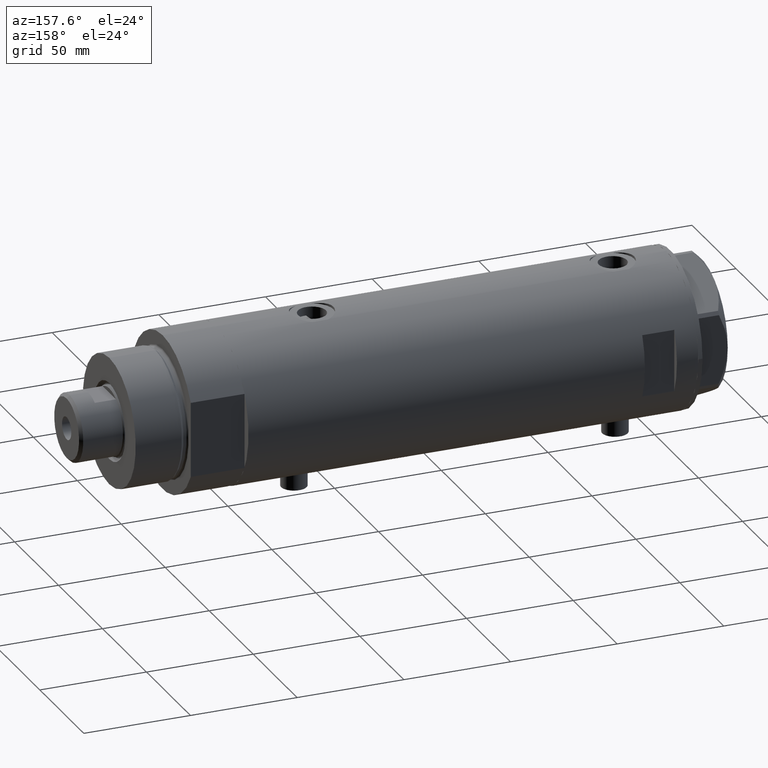
[diagram: clean part render]
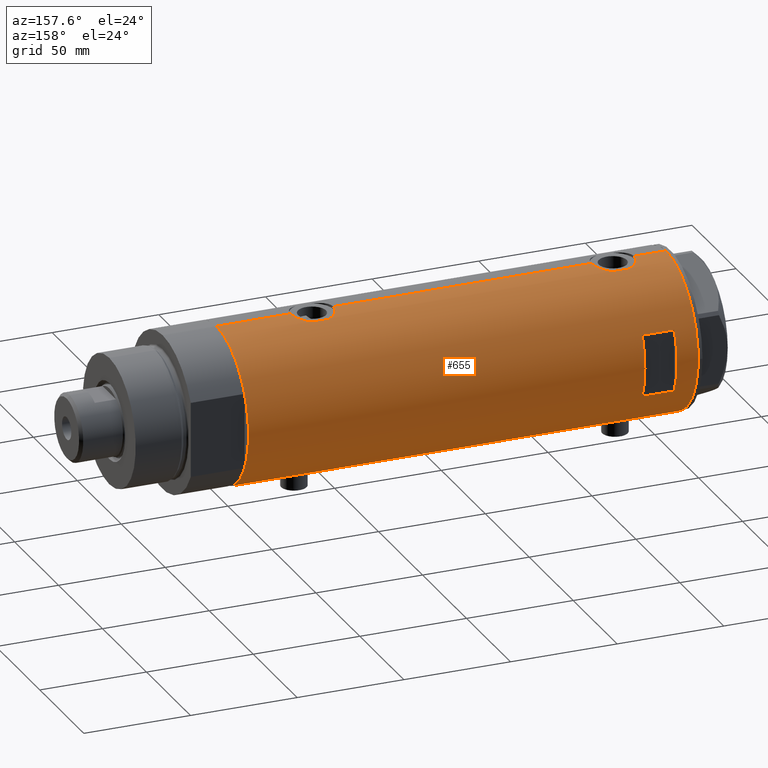
[diagram: same view with one face highlighted and labeled with its STEP entity id]
A machine part, auxiliary view. The second image highlights one B-rep face of the part: STEP entity #655.
In plain terms, the highlighted cylindrical surface (partial cylindrical patch) has radius 36.5 mm, axis along (-1, -0, 0).
Its self-contained STEP definition (entity closure, byte-faithful):
#12 = EDGE_CURVE ( 'NONE', #1223, #3325, #3095, .T. ) ;
#15 = CARTESIAN_POINT ( 'NONE',  ( -36.03936508729894683, 5.782103729777506196, 83.79870532603797528 ) ) ;
#29 = ORIENTED_EDGE ( 'NONE', *, *, #3892, .F. ) ;
#36 = CARTESIAN_POINT ( 'NONE',  ( -36.11199073531170001, 5.309184630646988090, 84.70412840766836382 ) ) ;
#38 = VECTOR ( 'NONE', #728, 1000.000000000000000 ) ;
#46 = VERTEX_POINT ( 'NONE', #1334 ) ;
#53 = CARTESIAN_POINT ( 'NONE',  ( 35.59366931936804690, 8.089554397885864390, -66.49927319087814226 ) ) ;
#54 = CARTESIAN_POINT ( 'NONE',  ( -35.99700617875953412, 6.038972911021586398, 83.02333185798322290 ) ) ;
#70 = VERTEX_POINT ( 'NONE', #3469 ) ;
#77 = CARTESIAN_POINT ( 'NONE',  ( -36.01524716445113938, 5.931039972055517140, 79.38669268135345192 ) ) ;
#84 = DIRECTION ( 'NONE',  ( 0.000000000000000000, 4.625929269271492422E-15, 1.000000000000000000 ) ) ;
#88 = CARTESIAN_POINT ( 'NONE',  ( 36.41717583764486221, 2.469534783404756073, -50.90651988824328100 ) ) ;
#101 = CARTESIAN_POINT ( 'NONE',  ( -36.09617453667821252, 5.415318599347968664, 84.52706642672910675 ) ) ;
#115 = VERTEX_POINT ( 'NONE', #3876 ) ;
#134 = CARTESIAN_POINT ( 'NONE',  ( 35.29999999999999716, 9.282241108697832033, 84.12021504754764578 ) ) ;
#139 = CARTESIAN_POINT ( 'NONE',  ( 36.50000000000000000, 4.344609657431182014E-19, -50.60000000000000853 ) ) ;
#143 = CARTESIAN_POINT ( 'NONE',  ( 35.29999999999999716, 9.282241108697832033, 76.67978495245235138 ) ) ;
#203 = DIRECTION ( 'NONE',  ( 0.000000000000000000, 0.000000000000000000, 1.000000000000000000 ) ) ;
#215 = ORIENTED_EDGE ( 'NONE', *, *, #2620, .F. ) ;
#259 = CARTESIAN_POINT ( 'NONE',  ( -36.50000000000000000, 4.469960816887837641E-15, -105.4000000000000057 ) ) ;
#267 = CARTESIAN_POINT ( 'NONE',  ( -36.44628644024910358, 2.015372769639943051, -75.03028128013583853 ) ) ;
#268 = CARTESIAN_POINT ( 'NONE',  ( 35.79715675463678792, 7.130463293899335753, 87.41555584105994114 ) ) ;
#287 = CARTESIAN_POINT ( 'NONE',  ( -36.11206433103226487, 5.308658295084045520, -72.40484648040975912 ) ) ;
#304 = CARTESIAN_POINT ( 'NONE',  ( 36.50000000000000000, 0.000000000000000000, 70.40000000000000568 ) ) ;
#315 = CARTESIAN_POINT ( 'NONE',  ( 36.50000000000000000, 0.000000000000000000, -105.4000000000000057 ) ) ;
#360 = CARTESIAN_POINT ( 'NONE',  ( -36.01679413914727235, 5.919813138266325048, -67.08500308952962143 ) ) ;
#424 = CARTESIAN_POINT ( 'NONE',  ( -36.19624103943463922, 4.708090268046847271, 85.53061221446137097 ) ) ;
#432 = CARTESIAN_POINT ( 'NONE',  ( 35.83170458557578542, 6.955065627744197343, -53.41058328087536466 ) ) ;
#441 = CARTESIAN_POINT ( 'NONE',  ( -36.26643311080165688, 4.132772529026634167, 86.10619405269881099 ) ) ;
#468 = CARTESIAN_POINT ( 'NONE',  ( -36.05296344941213960, 5.695624845616829468, 78.81845143463239367 ) ) ;
#469 = CARTESIAN_POINT ( 'NONE',  ( -36.50000000000000000, 1.407447864834978200E-15, 87.65000000000000568 ) ) ;
#470 = VERTEX_POINT ( 'NONE', #3497 ) ;
#505 = ORIENTED_EDGE ( 'NONE', *, *, #845, .F. ) ;
#531 = CARTESIAN_POINT ( 'NONE',  ( 36.13018480315371761, 5.199168368309158517, -69.15646498208050730 ) ) ;
#537 = ORIENTED_EDGE ( 'NONE', *, *, #4401, .T. ) ;
#554 = DIRECTION ( 'NONE',  ( -0.000000000000000000, -0.000000000000000000, -1.000000000000000000 ) ) ;
#559 = CARTESIAN_POINT ( 'NONE',  ( 36.36225053217121683, 3.177096004138046048, -70.08516024475980544 ) ) ;
#566 = VERTEX_POINT ( 'NONE', #1803 ) ;
#571 = CARTESIAN_POINT ( 'NONE',  ( 35.29999999999999716, 9.282241108697835585, -105.4000000000000057 ) ) ;
#573 = CARTESIAN_POINT ( 'NONE',  ( 36.49999999999999289, 0.4961820988516178477, 90.39999999999997726 ) ) ;
#588 = CARTESIAN_POINT ( 'NONE',  ( 0.000000000000000000, 0.000000000000000000, -105.4000000000000057 ) ) ;
#591 = CARTESIAN_POINT ( 'NONE',  ( 36.26917563968160607, 4.104523505324173982, 71.27784011632526529 ) ) ;
#597 = CARTESIAN_POINT ( 'NONE',  ( 35.52347503888661606, 8.410566959990463332, 85.89953967259343415 ) ) ;
#614 = CARTESIAN_POINT ( 'NONE',  ( 35.59366931936805400, 8.089554397885866166, 74.50072680912187195 ) ) ;
#622 = CARTESIAN_POINT ( 'NONE',  ( -36.36587679577596077, 3.131448301962866054, -74.51282465573619618 ) ) ;
#634 = FACE_BOUND ( 'NONE', #739, .T. ) ;
#648 = CARTESIAN_POINT ( 'NONE',  ( -35.96094343308264740, 6.249843792257632202, -68.68912889655432252 ) ) ;
#650 = EDGE_CURVE ( 'NONE', #470, #2335, #4029, .T. ) ;
#655 = ADVANCED_FACE ( 'NONE', ( #634, #3724 ), #2012, .T. ) ;
#712 = EDGE_CURVE ( 'NONE', #115, #46, #4468, .T. ) ;
#726 = CARTESIAN_POINT ( 'NONE',  ( -36.50000000000000000, 0.4137727629436734333, -62.84999999999998721 ) ) ;
#728 = DIRECTION ( 'NONE',  ( -0.000000000000000000, -0.000000000000000000, -1.000000000000000000 ) ) ;
#739 = EDGE_LOOP ( 'NONE', ( #215, #2406, #898, #2362 ) ) ;
#745 = CARTESIAN_POINT ( 'NONE',  ( -36.50000000000000000, 0.4083036190459313763, 75.14999999999996305 ) ) ;
#759 = AXIS2_PLACEMENT_3D ( 'NONE', #3487, #84, #1112 ) ;
#765 = CARTESIAN_POINT ( 'NONE',  ( -36.49297130294515057, 0.8204796224394288462, 87.60931692217734224 ) ) ;
#775 = B_SPLINE_CURVE_WITH_KNOTS ( 'NONE', 3,
 ( #304, #2320, #3708, #2402, #1379, #2683, #591, #2702, #2727, #3439, #1679, #1996, #1633, #614, #4068, #3017, #2748, #3369 ),
 .UNSPECIFIED., .F., .F.,
 ( 4, 2, 2, 2, 2, 2, 2, 2, 4 ),
 ( -8.673617379884035472E-19, 0.002973648994175663411, 0.003717061242719586420, 0.004460473491263509428, 0.005947297988351372793, 0.007434122485439235289, 0.008920946982527096919, 0.01040777147961496202, 0.01189459597670282365 ),
 .UNSPECIFIED. ) ;
#783 = CARTESIAN_POINT ( 'NONE',  ( -36.35033317675381426, 3.306376218664582645, 76.09229280583950583 ) ) ;
#823 = CARTESIAN_POINT ( 'NONE',  ( -36.11206433103227909, 5.308658295084049072, 78.09515351959024088 ) ) ;
#845 = EDGE_CURVE ( 'NONE', #2765, #3325, #1499, .T. ) ;
#898 = ORIENTED_EDGE ( 'NONE', *, *, #712, .F. ) ;
#944 = VERTEX_POINT ( 'NONE', #143 ) ;
#947 = ORIENTED_EDGE ( 'NONE', *, *, #4033, .F. ) ;
#954 = EDGE_LOOP ( 'NONE', ( #537, #1253, #4281, #4091, #505, #4375, #2059, #29, #4142, #2787, #947, #1606, #1543, #1268, #3474, #2628 ) ) ;
#957 = EDGE_CURVE ( 'NONE', #2765, #3110, #2253, .T. ) ;
#967 = CARTESIAN_POINT ( 'NONE',  ( -36.50000000000000711, 0.4083036190459274350, -75.35000000000002274 ) ) ;
#996 = AXIS2_PLACEMENT_3D ( 'NONE', #588, #3687, #3728 ) ;
#1018 = EDGE_CURVE ( 'NONE', #3223, #115, #1857, .T. ) ;
#1033 = VERTEX_POINT ( 'NONE', #2624 ) ;
#1048 = DIRECTION ( 'NONE',  ( 0.000000000000000000, 0.000000000000000000, 1.000000000000000000 ) ) ;
#1066 = CARTESIAN_POINT ( 'NONE',  ( -36.47290054070997201, 1.420408912806972124, -63.01013018339985194 ) ) ;
#1084 = CARTESIAN_POINT ( 'NONE',  ( -36.30181775639988473, 3.813582387016785535, 76.43163942425562141 ) ) ;
#1087 = CARTESIAN_POINT ( 'NONE',  ( -36.39638105034455151, 2.774378062517169674, -63.48456667300896328 ) ) ;
#1103 = CARTESIAN_POINT ( 'NONE',  ( -36.46462099658055678, 1.618684470865506375, 87.44024397024844575 ) ) ;
#1110 = CARTESIAN_POINT ( 'NONE',  ( -36.05296344941216802, 5.695624845616830356, -71.68154856536759212 ) ) ;
#1112 = DIRECTION ( 'NONE',  ( 0.000000000000000000, 1.000000000000000000, -4.562560375171875891E-15 ) ) ;
#1124 = CARTESIAN_POINT ( 'NONE',  ( -36.06675137892953131, 5.607935153446980792, 84.16681826008758094 ) ) ;
#1147 = CARTESIAN_POINT ( 'NONE',  ( 35.93456089024233790, 6.410413305453382726, -68.29085963204144605 ) ) ;
#1153 = VERTEX_POINT ( 'NONE', #1171 ) ;
#1171 = CARTESIAN_POINT ( 'NONE',  ( -14.49137674618942562, 33.50000000000000000, 80.40000000000003411 ) ) ;
#1223 = VERTEX_POINT ( 'NONE', #4287 ) ;
#1238 = CARTESIAN_POINT ( 'NONE',  ( 36.50000000000000000, 1.005842003469122004, -70.59999999999999432 ) ) ;
#1239 = CARTESIAN_POINT ( 'NONE',  ( 35.72794581931695745, 7.469526493268201506, -53.94660203271736520 ) ) ;
#1253 = ORIENTED_EDGE ( 'NONE', *, *, #1609, .T. ) ;
#1258 = CARTESIAN_POINT ( 'NONE',  ( 0.000000000000000000, 0.000000000000000000, 95.40000000000001990 ) ) ;
#1267 = EDGE_CURVE ( 'NONE', #1631, #944, #3670, .T. ) ;
#1268 = ORIENTED_EDGE ( 'NONE', *, *, #2433, .T. ) ;
#1303 = CARTESIAN_POINT ( 'NONE',  ( 35.29999999999999716, 9.282241108697835585, -105.4000000000000057 ) ) ;
#1334 = CARTESIAN_POINT ( 'NONE',  ( 14.49137674618942384, 33.50000000000000000, 80.40000000000003411 ) ) ;
#1342 = CARTESIAN_POINT ( 'NONE',  ( 35.83170458557578542, 6.955065627744196455, 87.58941671912465665 ) ) ;
#1379 = CARTESIAN_POINT ( 'NONE',  ( 36.34070350304396158, 3.414301401755541310, 70.99763782624093267 ) ) ;
#1383 = CIRCLE ( 'NONE', #1865, 36.50000000000000000 ) ;
#1385 = CARTESIAN_POINT ( 'NONE',  ( -36.40902375114221456, 2.582415566883933256, -74.79521691469689415 ) ) ;
#1395 = CARTESIAN_POINT ( 'NONE',  ( 36.50000000000000000, 0.000000000000000000, -105.4000000000000057 ) ) ;
#1396 = CARTESIAN_POINT ( 'NONE',  ( -36.16126303108063667, 4.966520032693295228, -65.28358772254718190 ) ) ;
#1424 = CIRCLE ( 'NONE', #996, 36.50000000000000000 ) ;
#1438 = B_SPLINE_CURVE_WITH_KNOTS ( 'NONE', 3,
 ( #3321, #1238, #2602, #559, #3971, #3632, #1951, #2046, #531, #2961, #1147, #3124, #2813, #53, #2616, #3979, #2272, #4102 ),
 .UNSPECIFIED., .F., .F.,
 ( 4, 2, 2, 2, 2, 2, 2, 2, 4 ),
 ( -1.084202172485504434E-18, 0.002973648994175745811, 0.003717061242719678360, 0.004460473491263610910, 0.005947297988351454325, 0.007434122485439297739, 0.008920946982527140287, 0.01040777147961498283, 0.01189459597670282365 ),
 .UNSPECIFIED. ) ;
#1482 = CARTESIAN_POINT ( 'NONE',  ( -36.06690560274405044, 5.606949625760678124, 78.63114076041068756 ) ) ;
#1495 = CARTESIAN_POINT ( 'NONE',  ( 36.44688397185920792, 1.983417953489134300, -50.79550042351748829 ) ) ;
#1499 = B_SPLINE_CURVE_WITH_KNOTS ( 'NONE', 3,
 ( #4189, #3909, #765, #1792, #1103, #2199, #2535, #3829, #1863, #4230, #441, #424, #2471, #36, #101, #1124, #15, #3480, #54, #3546, #1813, #2816, #2491, #2857, #3571, #77, #468, #1482, #4173, #823, #2796, #1835, #2516, #1084, #783, #2158, #3209, #3503, #2452, #3867, #3844, #745, #3889 ),
 .UNSPECIFIED., .F., .F.,
 ( 4, 2, 2, 2, 2, 2, 2, 2, 1, 2, 2, 2, 2, 2, 2, 2, 2, 2, 2, 2, 2, 4 ),
 ( 1.367394070233553059E-18, 0.001223527801214184920, 0.001835291701821280957, 0.002447055602428376345, 0.003670583403642568420, 0.004894111204856760496, 0.006117639006070953005, 0.006729402906678031912, 0.007341166807285110819, 0.007952930707892187992, 0.008564694608499267767, 0.009788222409713425581, 0.01101175021092758340, 0.01223527801214174121, 0.01284704191274879843, 0.01345880581335585913, 0.01468233361456997531, 0.01590586141578409149, 0.01651762531639115392, 0.01712938921699821287, 0.01835291701821231691, 0.01957644481942642095 ),
 .UNSPECIFIED. ) ;
#1504 = VECTOR ( 'NONE', #4086, 1000.000000000000000 ) ;
#1540 = DIRECTION ( 'NONE',  ( 0.000000000000000000, 0.000000000000000000, 1.000000000000000000 ) ) ;
#1543 = ORIENTED_EDGE ( 'NONE', *, *, #650, .F. ) ;
#1570 = AXIS2_PLACEMENT_3D ( 'NONE', #3128, #1048, #1735 ) ;
#1594 = LINE ( 'NONE', #1686, #2744 ) ;
#1606 = ORIENTED_EDGE ( 'NONE', *, *, #3530, .F. ) ;
#1609 = EDGE_CURVE ( 'NONE', #3938, #566, #1594, .T. ) ;
#1611 = CARTESIAN_POINT ( 'NONE',  ( -14.49137674618942739, 33.50000000000000000, 95.40000000000001990 ) ) ;
#1630 = DIRECTION ( 'NONE',  ( 1.000000000000000000, 0.000000000000000000, 0.000000000000000000 ) ) ;
#1631 = VERTEX_POINT ( 'NONE', #134 ) ;
#1633 = CARTESIAN_POINT ( 'NONE',  ( 35.72860827204724643, 7.471059959301278752, 73.73474849525591424 ) ) ;
#1641 = VECTOR ( 'NONE', #4471, 1000.000000000000000 ) ;
#1653 = CARTESIAN_POINT ( 'NONE',  ( 36.50000000000000000, 0.000000000000000000, 105.4000000000000057 ) ) ;
#1658 = CARTESIAN_POINT ( 'NONE',  ( 35.39804469700249001, 8.909380959553013568, 85.05053164482841055 ) ) ;
#1663 = CARTESIAN_POINT ( 'NONE',  ( -36.50000000000000000, 4.469960493350315609E-15, -75.35000000000000853 ) ) ;
#1679 = CARTESIAN_POINT ( 'NONE',  ( 35.93456089024233790, 6.410413305453380950, 72.70914036795855395 ) ) ;
#1682 = CARTESIAN_POINT ( 'NONE',  ( 36.41717583764487642, 2.469534783404760514, 90.09348011175671900 ) ) ;
#1683 = CARTESIAN_POINT ( 'NONE',  ( -36.01524716445114649, 5.931039972055518916, -71.11330731864657650 ) ) ;
#1686 = CARTESIAN_POINT ( 'NONE',  ( -36.50000000000000000, 4.469960816887837641E-15, -105.4000000000000057 ) ) ;
#1707 = CARTESIAN_POINT ( 'NONE',  ( -36.26695135241003953, 4.128455078791312793, -73.81037591644739848 ) ) ;
#1735 = DIRECTION ( 'NONE',  ( 1.000000000000000000, 0.000000000000000000, 0.000000000000000000 ) ) ;
#1742 = EDGE_CURVE ( 'NONE', #4403, #3110, #1383, .T. ) ;
#1751 = CARTESIAN_POINT ( 'NONE',  ( -35.99700617875953412, 6.038972911021587286, -67.47666814201679131 ) ) ;
#1758 = VECTOR ( 'NONE', #2330, 1000.000000000000000 ) ;
#1761 = CARTESIAN_POINT ( 'NONE',  ( 36.50000000000000000, 4.344614706140975428E-19, 90.39999999999999147 ) ) ;
#1792 = CARTESIAN_POINT ( 'NONE',  ( -36.47290054070997911, 1.420408912806973678, 87.48986981660016227 ) ) ;
#1801 = CARTESIAN_POINT ( 'NONE',  ( -35.96088929326157313, 6.250155299092686967, -69.50610494763246550 ) ) ;
#1803 = CARTESIAN_POINT ( 'NONE',  ( -36.50000000000000000, 4.469960493350315609E-15, -75.35000000000000853 ) ) ;
#1813 = CARTESIAN_POINT ( 'NONE',  ( -35.96793274302675059, 6.210029014836887740, 82.21694237679317041 ) ) ;
#1822 = CARTESIAN_POINT ( 'NONE',  ( 36.40008489419981430, 2.709263960908028679, -50.97081895403610474 ) ) ;
#1835 = CARTESIAN_POINT ( 'NONE',  ( -36.19597718496777361, 4.710322426433901200, 77.27148389237981974 ) ) ;
#1848 = CARTESIAN_POINT ( 'NONE',  ( 36.18937351723702989, 4.773052864917637805, -51.79864006881157934 ) ) ;
#1857 = CIRCLE ( 'NONE', #1940, 36.50000000000000000 ) ;
#1863 = CARTESIAN_POINT ( 'NONE',  ( -36.36688032967141027, 3.133094607697489931, 86.82336432637509915 ) ) ;
#1865 = AXIS2_PLACEMENT_3D ( 'NONE', #2986, #203, #1630 ) ;
#1902 = CARTESIAN_POINT ( 'NONE',  ( 35.79715675463678792, 7.130463293899339305, -53.58444415894006596 ) ) ;
#1940 = AXIS2_PLACEMENT_3D ( 'NONE', #1258, #554, #4331 ) ;
#1951 = CARTESIAN_POINT ( 'NONE',  ( 36.26917563968161318, 4.104523505324172206, -69.72215988367474893 ) ) ;
#1963 = CARTESIAN_POINT ( 'NONE',  ( 36.50000000000000000, 4.344614706140975428E-19, 90.39999999999999147 ) ) ;
#1996 = CARTESIAN_POINT ( 'NONE',  ( 35.79766710091575987, 7.135341284989890731, 73.37649479439095046 ) ) ;
#2012 = CYLINDRICAL_SURFACE ( 'NONE', #1570, 36.50000000000000000 ) ;
#2023 = CARTESIAN_POINT ( 'NONE',  ( -35.98846897517729815, 6.089479646546500646, -67.67765108453481560 ) ) ;
#2042 = CARTESIAN_POINT ( 'NONE',  ( -36.06690560274406465, 5.606949625760679901, -71.86885923958934086 ) ) ;
#2046 = CARTESIAN_POINT ( 'NONE',  ( 36.18948008481303447, 4.772042575486197258, -69.40177631243156497 ) ) ;
#2059 = ORIENTED_EDGE ( 'NONE', *, *, #1742, .F. ) ;
#2094 = CARTESIAN_POINT ( 'NONE',  ( -36.09617453667821252, 5.415318599347968664, -65.97293357327090746 ) ) ;
#2108 = CARTESIAN_POINT ( 'NONE',  ( -36.43371204571226230, 2.206934156026287397, -63.24902718329002482 ) ) ;
#2139 = CARTESIAN_POINT ( 'NONE',  ( -36.16083474549354548, 4.969527450313385053, -72.91205319122752826 ) ) ;
#2142 = CARTESIAN_POINT ( 'NONE',  ( 36.00145998247696610, 6.026272765084655703, -52.60449611787613122 ) ) ;
#2158 = CARTESIAN_POINT ( 'NONE',  ( -36.36587679577596077, 3.131448301962866054, 75.98717534426381803 ) ) ;
#2161 = EDGE_CURVE ( 'NONE', #1223, #566, #4278, .T. ) ;
#2199 = CARTESIAN_POINT ( 'NONE',  ( -36.44504802628534890, 2.011764947064737186, 87.32093644908518115 ) ) ;
#2225 = CARTESIAN_POINT ( 'NONE',  ( 36.50000000000000000, 0.000000000000000000, -105.4000000000000057 ) ) ;
#2242 = CARTESIAN_POINT ( 'NONE',  ( 35.52347503888660896, 8.410566959990461555, -55.10046032740658006 ) ) ;
#2253 = LINE ( 'NONE', #3984, #3220 ) ;
#2272 = CARTESIAN_POINT ( 'NONE',  ( 35.34894515018992678, 9.096104616284845790, -64.78464083466536749 ) ) ;
#2320 = CARTESIAN_POINT ( 'NONE',  ( 36.49999999999999289, 1.005842003469121781, 70.40000000000001990 ) ) ;
#2330 = DIRECTION ( 'NONE',  ( 0.000000000000000000, 0.000000000000000000, 1.000000000000000000 ) ) ;
#2335 = VERTEX_POINT ( 'NONE', #139 ) ;
#2344 = CARTESIAN_POINT ( 'NONE',  ( 36.18937351723702989, 4.773052864917641358, 89.20135993118843487 ) ) ;
#2347 = B_SPLINE_CURVE_WITH_KNOTS ( 'NONE', 3,
 ( #3782, #1658, #597, #4391, #4054, #268, #1342, #2368, #3741, #3283, #2344, #3020, #3331, #2664, #1682, #2971, #3672, #4388, #573, #1963 ),
 .UNSPECIFIED., .F., .F.,
 ( 4, 2, 2, 2, 2, 2, 2, 2, 2, 4 ),
 ( 1.551583845779545699E-17, 0.002977391289382861662, 0.003721739111728563851, 0.004466086934074266906, 0.005954782578765698171, 0.007443478223457130304, 0.008932173868148563303, 0.009676521690494287176, 0.01042086951284001105, 0.01190956515753145012 ),
 .UNSPECIFIED. ) ;
#2362 = ORIENTED_EDGE ( 'NONE', *, *, #1018, .F. ) ;
#2368 = CARTESIAN_POINT ( 'NONE',  ( 35.93435287561198521, 6.411571491280765756, 88.08988644922843037 ) ) ;
#2384 = VECTOR ( 'NONE', #3408, 1000.000000000000000 ) ;
#2402 = CARTESIAN_POINT ( 'NONE',  ( 36.36225053217120262, 3.177096004138046048, 70.91483975524022298 ) ) ;
#2404 = VERTEX_POINT ( 'NONE', #2225 ) ;
#2406 = ORIENTED_EDGE ( 'NONE', *, *, #3349, .F. ) ;
#2433 = EDGE_CURVE ( 'NONE', #470, #70, #3386, .T. ) ;
#2437 = CARTESIAN_POINT ( 'NONE',  ( -36.26643311080166399, 4.132772529026634167, -64.39380594730117480 ) ) ;
#2452 = CARTESIAN_POINT ( 'NONE',  ( -36.44628644024910358, 2.015372769639943495, 75.46971871986416147 ) ) ;
#2453 = CARTESIAN_POINT ( 'NONE',  ( -36.36688032967140316, 3.133094607697481493, -63.67663567362490085 ) ) ;
#2471 = CARTESIAN_POINT ( 'NONE',  ( -36.16126303108063667, 4.966520032693296116, 85.21641227745284652 ) ) ;
#2476 = CARTESIAN_POINT ( 'NONE',  ( -36.39522946636253664, 2.769519034821244396, -74.70663923731272860 ) ) ;
#2480 = VERTEX_POINT ( 'NONE', #1761 ) ;
#2491 = CARTESIAN_POINT ( 'NONE',  ( -35.96088929326157313, 6.250155299092687855, 80.99389505236753450 ) ) ;
#2492 = CARTESIAN_POINT ( 'NONE',  ( -36.50000000000000000, 4.469960493350315609E-15, 75.14999999999999147 ) ) ;
#2493 = CARTESIAN_POINT ( 'NONE',  ( -36.50000000000000000, -5.849986204104554638E-16, -62.85000000000000142 ) ) ;
#2516 = CARTESIAN_POINT ( 'NONE',  ( -36.26695135241003953, 4.128455078791301247, 76.68962408355262994 ) ) ;
#2535 = CARTESIAN_POINT ( 'NONE',  ( -36.43371204571226940, 2.206934156026287397, 87.25097281670997518 ) ) ;
#2549 = CARTESIAN_POINT ( 'NONE',  ( 36.50000000000000000, 0.000000000000000000, -105.4000000000000057 ) ) ;
#2593 = DIRECTION ( 'NONE',  ( 0.000000000000000000, 0.000000000000000000, 1.000000000000000000 ) ) ;
#2597 = DIRECTION ( 'NONE',  ( 0.000000000000000000, 0.000000000000000000, 1.000000000000000000 ) ) ;
#2602 = CARTESIAN_POINT ( 'NONE',  ( 36.45853166336080164, 1.985123042546143024, -70.45162670417735740 ) ) ;
#2603 = CARTESIAN_POINT ( 'NONE',  ( 35.93435287561197811, 6.411571491280765756, -52.91011355077158385 ) ) ;
#2616 = CARTESIAN_POINT ( 'NONE',  ( 35.52737867031126484, 8.373910777960910323, -66.08860356717067930 ) ) ;
#2620 = EDGE_CURVE ( 'NONE', #1153, #3223, #3627, .T. ) ;
#2624 = CARTESIAN_POINT ( 'NONE',  ( 36.50000000000000000, 0.000000000000000000, 70.40000000000000568 ) ) ;
#2628 = ORIENTED_EDGE ( 'NONE', *, *, #2678, .F. ) ;
#2629 = CARTESIAN_POINT ( 'NONE',  ( 36.50000000000000000, 0.000000000000000000, -70.59999999999999432 ) ) ;
#2664 = CARTESIAN_POINT ( 'NONE',  ( 36.40008489419980720, 2.709263960908030899, 90.02918104596392368 ) ) ;
#2678 = EDGE_CURVE ( 'NONE', #2404, #4286, #4469, .T. ) ;
#2683 = CARTESIAN_POINT ( 'NONE',  ( 36.29420020483469500, 3.877527130731365901, 71.17901025599704212 ) ) ;
#2702 = CARTESIAN_POINT ( 'NONE',  ( 36.18948008481302026, 4.772042575486197258, 71.59822368756843503 ) ) ;
#2708 = CARTESIAN_POINT ( 'NONE',  ( -36.09643313249888763, 5.413601294342280212, -72.23007773391850606 ) ) ;
#2727 = CARTESIAN_POINT ( 'NONE',  ( 36.13018480315371761, 5.199168368309160293, 71.84353501791950691 ) ) ;
#2744 = VECTOR ( 'NONE', #3675, 1000.000000000000000 ) ;
#2748 = CARTESIAN_POINT ( 'NONE',  ( 35.34894515018993388, 9.096104616284849342, 76.21535916533458987 ) ) ;
#2755 = CARTESIAN_POINT ( 'NONE',  ( -36.46598788992681506, 1.625721481788708900, -75.14872046713838927 ) ) ;
#2765 = VERTEX_POINT ( 'NONE', #469 ) ;
#2787 = ORIENTED_EDGE ( 'NONE', *, *, #1267, .T. ) ;
#2796 = CARTESIAN_POINT ( 'NONE',  ( -36.16083474549354548, 4.969527450313384165, 77.58794680877252858 ) ) ;
#2813 = CARTESIAN_POINT ( 'NONE',  ( 35.72860827204724643, 7.471059959301278752, -67.26525150474407155 ) ) ;
#2816 = CARTESIAN_POINT ( 'NONE',  ( -35.96094343308266161, 6.249843792257633979, 81.81087110344569169 ) ) ;
#2857 = CARTESIAN_POINT ( 'NONE',  ( -35.96805604460922012, 6.209309709790233889, 80.57887241731827999 ) ) ;
#2869 = CARTESIAN_POINT ( 'NONE',  ( 36.45954139109320380, 1.735915671103592794, -50.74863218852989633 ) ) ;
#2915 = CARTESIAN_POINT ( 'NONE',  ( -36.50000000000000000, 4.469960816887837641E-15, -105.4000000000000057 ) ) ;
#2938 = CARTESIAN_POINT ( 'NONE',  ( 35.39804469700249712, 8.909380959553015344, -55.94946835517159656 ) ) ;
#2961 = CARTESIAN_POINT ( 'NONE',  ( 36.00287854058831272, 6.017835360302997039, -68.60188117181725431 ) ) ;
#2971 = CARTESIAN_POINT ( 'NONE',  ( 36.44688397185922923, 1.983417953489138297, 90.20449957648254724 ) ) ;
#2986 = CARTESIAN_POINT ( 'NONE',  ( 0.000000000000000000, 0.000000000000000000, 105.4000000000000057 ) ) ;
#3017 = CARTESIAN_POINT ( 'NONE',  ( 35.40502660484482078, 8.876998817796904362, 75.76901275928764790 ) ) ;
#3020 = CARTESIAN_POINT ( 'NONE',  ( 36.29611582693039651, 3.878758190381167648, 89.63044989099550719 ) ) ;
#3049 = CARTESIAN_POINT ( 'NONE',  ( 14.49137674618942562, 33.50000000000000000, -105.4000000000000057 ) ) ;
#3091 = CARTESIAN_POINT ( 'NONE',  ( 36.50000000000000000, 4.344609657431182014E-19, -50.60000000000000853 ) ) ;
#3093 = CARTESIAN_POINT ( 'NONE',  ( -36.19624103943463211, 4.708090268046848159, -64.96938778553862903 ) ) ;
#3095 = LINE ( 'NONE', #259, #1641 ) ;
#3104 = CARTESIAN_POINT ( 'NONE',  ( -36.35033317675379294, 3.306376218664579980, -74.40770719416053680 ) ) ;
#3110 = VERTEX_POINT ( 'NONE', #3422 ) ;
#3124 = CARTESIAN_POINT ( 'NONE',  ( 35.79766710091575987, 7.135341284989892507, -67.62350520560906375 ) ) ;
#3127 = EDGE_CURVE ( 'NONE', #4286, #70, #1438, .T. ) ;
#3128 = CARTESIAN_POINT ( 'NONE',  ( 0.000000000000000000, 0.000000000000000000, -105.4000000000000057 ) ) ;
#3176 = CARTESIAN_POINT ( 'NONE',  ( 36.29611582693039651, 3.878758190381166759, -51.36955010900450702 ) ) ;
#3197 = CARTESIAN_POINT ( 'NONE',  ( 36.12877841835538106, 5.208882251161921495, -52.04946835209709377 ) ) ;
#3209 = CARTESIAN_POINT ( 'NONE',  ( -36.39522946636253664, 2.769519034821243508, 75.79336076268727140 ) ) ;
#3220 = VECTOR ( 'NONE', #2593, 1000.000000000000000 ) ;
#3223 = VERTEX_POINT ( 'NONE', #1611 ) ;
#3231 = VECTOR ( 'NONE', #2597, 1000.000000000000000 ) ;
#3245 = CARTESIAN_POINT ( 'NONE',  ( 35.29999999999999716, 9.282241108697832033, -56.87978495245235422 ) ) ;
#3283 = CARTESIAN_POINT ( 'NONE',  ( 36.12877841835538817, 5.208882251161925936, 88.95053164790290623 ) ) ;
#3305 = LINE ( 'NONE', #2549, #4155 ) ;
#3321 = CARTESIAN_POINT ( 'NONE',  ( 36.50000000000000000, 0.000000000000000000, -70.59999999999999432 ) ) ;
#3325 = VERTEX_POINT ( 'NONE', #2492 ) ;
#3331 = CARTESIAN_POINT ( 'NONE',  ( 36.34264078466111414, 3.418717136061404371, 89.81049034040754009 ) ) ;
#3349 = EDGE_CURVE ( 'NONE', #46, #1153, #3788, .T. ) ;
#3369 = CARTESIAN_POINT ( 'NONE',  ( 35.29999999999999716, 9.282241108697832033, 76.67978495245235138 ) ) ;
#3386 = LINE ( 'NONE', #1303, #2384 ) ;
#3389 = DIRECTION ( 'NONE',  ( 0.000000000000000000, 0.000000000000000000, 1.000000000000000000 ) ) ;
#3408 = DIRECTION ( 'NONE',  ( -0.000000000000000000, -0.000000000000000000, -1.000000000000000000 ) ) ;
#3409 = CARTESIAN_POINT ( 'NONE',  ( 36.48988646280793802, 0.9921857666168130141, -50.63671884865574668 ) ) ;
#3421 = VECTOR ( 'NONE', #3389, 1000.000000000000000 ) ;
#3422 = CARTESIAN_POINT ( 'NONE',  ( -36.50000000000000000, 4.469960816887837641E-15, 105.4000000000000057 ) ) ;
#3425 = LINE ( 'NONE', #315, #1758 ) ;
#3439 = CARTESIAN_POINT ( 'NONE',  ( 36.00287854058830561, 6.017835360302999703, 72.39811882818277411 ) ) ;
#3445 = CARTESIAN_POINT ( 'NONE',  ( -35.96805604460922012, 6.209309709790233889, -69.92112758268173422 ) ) ;
#3467 = CARTESIAN_POINT ( 'NONE',  ( -36.06675137892952421, 5.607935153446979903, -66.33318173991243327 ) ) ;
#3469 = CARTESIAN_POINT ( 'NONE',  ( 35.29999999999999716, 9.282241108697832033, -64.32021504754764862 ) ) ;
#3474 = ORIENTED_EDGE ( 'NONE', *, *, #3127, .F. ) ;
#3480 = CARTESIAN_POINT ( 'NONE',  ( -36.01679413914728656, 5.919813138266330377, 83.41499691047036436 ) ) ;
#3481 = CARTESIAN_POINT ( 'NONE',  ( -36.30200038006935870, 3.811959488093740411, -64.13027895163995140 ) ) ;
#3487 = CARTESIAN_POINT ( 'NONE',  ( 0.000000000000000000, 0.000000000000000000, 80.40000000000017621 ) ) ;
#3497 = CARTESIAN_POINT ( 'NONE',  ( 35.29999999999999716, 9.282241108697832033, -56.87978495245235422 ) ) ;
#3503 = CARTESIAN_POINT ( 'NONE',  ( -36.40902375114221456, 2.582415566883933256, 75.70478308530312006 ) ) ;
#3511 = CARTESIAN_POINT ( 'NONE',  ( -35.96793274302674348, 6.210029014836887740, -68.28305762320682959 ) ) ;
#3530 = EDGE_CURVE ( 'NONE', #2335, #1033, #3425, .T. ) ;
#3546 = CARTESIAN_POINT ( 'NONE',  ( -35.98846897517731236, 6.089479646546502423, 82.82234891546522704 ) ) ;
#3555 = CARTESIAN_POINT ( 'NONE',  ( 35.69321149401849880, 7.633476302278300096, -54.13536927833557399 ) ) ;
#3571 = CARTESIAN_POINT ( 'NONE',  ( -35.99530513653993324, 6.049346314076207598, 79.77667416964166591 ) ) ;
#3577 = CARTESIAN_POINT ( 'NONE',  ( -14.49137674618942562, 33.50000000000000000, -105.4000000000000057 ) ) ;
#3627 = LINE ( 'NONE', #3577, #3231 ) ;
#3632 = CARTESIAN_POINT ( 'NONE',  ( 36.29420020483473053, 3.877527130731367233, -69.82098974400294367 ) ) ;
#3670 = LINE ( 'NONE', #571, #38 ) ;
#3672 = CARTESIAN_POINT ( 'NONE',  ( 36.45954139109321090, 1.735915671103594349, 90.25136781147007525 ) ) ;
#3675 = DIRECTION ( 'NONE',  ( 0.000000000000000000, 0.000000000000000000, 1.000000000000000000 ) ) ;
#3687 = DIRECTION ( 'NONE',  ( 0.000000000000000000, 0.000000000000000000, 1.000000000000000000 ) ) ;
#3708 = CARTESIAN_POINT ( 'NONE',  ( 36.45853166336080164, 1.985123042546143024, 70.54837329582262839 ) ) ;
#3724 = FACE_OUTER_BOUND ( 'NONE', #954, .T. ) ;
#3728 = DIRECTION ( 'NONE',  ( 1.000000000000000000, 0.000000000000000000, 0.000000000000000000 ) ) ;
#3741 = CARTESIAN_POINT ( 'NONE',  ( 36.00145998247696610, 6.026272765084661032, 88.39550388212386167 ) ) ;
#3763 = CARTESIAN_POINT ( 'NONE',  ( -35.99530513653992614, 6.049346314076206710, -70.72332583035836251 ) ) ;
#3764 = EDGE_CURVE ( 'NONE', #1631, #2480, #2347, .T. ) ;
#3782 = CARTESIAN_POINT ( 'NONE',  ( 35.29999999999999716, 9.282241108697832033, 84.12021504754764578 ) ) ;
#3788 = CIRCLE ( 'NONE', #759, 36.50000000000000000 ) ;
#3814 = CARTESIAN_POINT ( 'NONE',  ( -36.11199073531172132, 5.309184630646989866, -65.79587159233167881 ) ) ;
#3829 = CARTESIAN_POINT ( 'NONE',  ( -36.39638105034455862, 2.774378062517170562, 87.01543332699102962 ) ) ;
#3844 = CARTESIAN_POINT ( 'NONE',  ( -36.49292802938586533, 0.8230716655928910219, 75.19093061246483956 ) ) ;
#3847 = CARTESIAN_POINT ( 'NONE',  ( -36.44504802628534890, 2.011764947064735409, -63.17906355091480464 ) ) ;
#3867 = CARTESIAN_POINT ( 'NONE',  ( -36.46598788992681506, 1.625721481788709344, 75.35127953286161073 ) ) ;
#3876 = CARTESIAN_POINT ( 'NONE',  ( 14.49137674618942739, 33.50000000000000000, 95.40000000000001990 ) ) ;
#3889 = CARTESIAN_POINT ( 'NONE',  ( -36.50000000000000000, 4.469960493350315609E-15, 75.14999999999999147 ) ) ;
#3892 = EDGE_CURVE ( 'NONE', #2480, #4403, #3305, .T. ) ;
#3909 = CARTESIAN_POINT ( 'NONE',  ( -36.49999999999999289, 0.4137727629436736554, 87.65000000000000568 ) ) ;
#3938 = VERTEX_POINT ( 'NONE', #2915 ) ;
#3971 = CARTESIAN_POINT ( 'NONE',  ( 36.34070350304396868, 3.414301401755541754, -70.00236217375906733 ) ) ;
#3979 = CARTESIAN_POINT ( 'NONE',  ( 35.40502660484482789, 8.876998817796907915, -65.23098724071236632 ) ) ;
#3984 = CARTESIAN_POINT ( 'NONE',  ( -36.50000000000000000, 4.469960816887837641E-15, -105.4000000000000057 ) ) ;
#4029 = B_SPLINE_CURVE_WITH_KNOTS ( 'NONE', 3,
 ( #3245, #2938, #2242, #3555, #1239, #1902, #432, #2603, #2142, #3197, #1848, #3176, #4216, #1822, #88, #1495, #2869, #3409, #4415, #3091 ),
 .UNSPECIFIED., .F., .F.,
 ( 4, 2, 2, 2, 2, 2, 2, 2, 2, 4 ),
 ( 1.551583845779545699E-17, 0.002977391289382848218, 0.003721739111728565152, 0.004466086934074281652, 0.005954782578765715519, 0.007443478223457148518, 0.008932173868148582385, 0.009676521690494299319, 0.01042086951284001625, 0.01190956515753145185 ),
 .UNSPECIFIED. ) ;
#4033 = EDGE_CURVE ( 'NONE', #1033, #944, #775, .T. ) ;
#4054 = CARTESIAN_POINT ( 'NONE',  ( 35.72794581931695035, 7.469526493268199729, 87.05339796728263480 ) ) ;
#4068 = CARTESIAN_POINT ( 'NONE',  ( 35.52737867031127195, 8.373910777960903218, 74.91139643282933491 ) ) ;
#4074 = CARTESIAN_POINT ( 'NONE',  ( -36.19597718496778072, 4.710322426433910969, -73.22851610762013763 ) ) ;
#4086 = DIRECTION ( 'NONE',  ( -0.000000000000000000, -0.000000000000000000, -1.000000000000000000 ) ) ;
#4091 = ORIENTED_EDGE ( 'NONE', *, *, #12, .T. ) ;
#4102 = CARTESIAN_POINT ( 'NONE',  ( 35.29999999999999716, 9.282241108697832033, -64.32021504754764862 ) ) ;
#4137 = CARTESIAN_POINT ( 'NONE',  ( -36.03936508729894683, 5.782103729777504419, -66.70129467396202472 ) ) ;
#4142 = ORIENTED_EDGE ( 'NONE', *, *, #3764, .F. ) ;
#4155 = VECTOR ( 'NONE', #1540, 1000.000000000000000 ) ;
#4156 = CARTESIAN_POINT ( 'NONE',  ( -36.49297130294515057, 0.8204796224394284021, -62.89068307782267908 ) ) ;
#4173 = CARTESIAN_POINT ( 'NONE',  ( -36.09643313249890184, 5.413601294342284653, 78.26992226608150816 ) ) ;
#4189 = CARTESIAN_POINT ( 'NONE',  ( -36.50000000000000000, 1.407447864834978200E-15, 87.65000000000000568 ) ) ;
#4216 = CARTESIAN_POINT ( 'NONE',  ( 36.34264078466110703, 3.418717136061401263, -51.18950965959248833 ) ) ;
#4230 = CARTESIAN_POINT ( 'NONE',  ( -36.30200038006935870, 3.811959488093746184, 86.36972104836003439 ) ) ;
#4278 = B_SPLINE_CURVE_WITH_KNOTS ( 'NONE', 3,
 ( #2493, #726, #4156, #1066, #4470, #3847, #2108, #1087, #2453, #3481, #2437, #3093, #1396, #3814, #2094, #3467, #4137, #360, #1751, #2023, #3511, #648, #1801, #3445, #3763, #1683, #1110, #2042, #2708, #287, #2139, #4074, #1707, #4456, #3104, #622, #2476, #1385, #267, #2755, #4409, #967, #1663 ),
 .UNSPECIFIED., .F., .F.,
 ( 4, 2, 2, 2, 2, 2, 2, 2, 1, 2, 2, 2, 2, 2, 2, 2, 2, 2, 2, 2, 2, 4 ),
 ( 5.683504623013911987E-19, 0.001223527801214120518, 0.001835291701821175356, 0.002447055602428230194, 0.003670583403642342039, 0.004894111204856454317, 0.006117639006070565294, 0.006729402906677638130, 0.007341166807284710966, 0.007952930707891782067, 0.008564694608498856637, 0.009788222409713002309, 0.01101175021092714625, 0.01223527801214129365, 0.01284704191274838730, 0.01345880581335547749, 0.01468233361456966132, 0.01590586141578384169, 0.01651762531639093534, 0.01712938921699802552, 0.01835291701821222324, 0.01957644481942642095 ),
 .UNSPECIFIED. ) ;
#4281 = ORIENTED_EDGE ( 'NONE', *, *, #2161, .F. ) ;
#4286 = VERTEX_POINT ( 'NONE', #2629 ) ;
#4287 = CARTESIAN_POINT ( 'NONE',  ( -36.50000000000000000, -5.849986204104554638E-16, -62.85000000000000142 ) ) ;
#4331 = DIRECTION ( 'NONE',  ( 1.000000000000000000, 1.776356839400250465E-15, 0.000000000000000000 ) ) ;
#4375 = ORIENTED_EDGE ( 'NONE', *, *, #957, .T. ) ;
#4388 = CARTESIAN_POINT ( 'NONE',  ( 36.48988646280794512, 0.9921857666168150125, 90.36328115134425332 ) ) ;
#4391 = CARTESIAN_POINT ( 'NONE',  ( 35.69321149401851301, 7.633476302278301873, 86.86463072166442601 ) ) ;
#4401 = EDGE_CURVE ( 'NONE', #2404, #3938, #1424, .T. ) ;
#4403 = VERTEX_POINT ( 'NONE', #1653 ) ;
#4409 = CARTESIAN_POINT ( 'NONE',  ( -36.49292802938587954, 0.8230716655928912440, -75.30906938753517466 ) ) ;
#4415 = CARTESIAN_POINT ( 'NONE',  ( 36.49999999999999289, 0.4961820988516180142, -50.59999999999998721 ) ) ;
#4456 = CARTESIAN_POINT ( 'NONE',  ( -36.30181775639987052, 3.813582387016787312, -74.06836057574437859 ) ) ;
#4468 = LINE ( 'NONE', #3049, #1504 ) ;
#4469 = LINE ( 'NONE', #1395, #3421 ) ;
#4470 = CARTESIAN_POINT ( 'NONE',  ( -36.46462099658054967, 1.618684470865504821, -63.05975602975154004 ) ) ;
#4471 = DIRECTION ( 'NONE',  ( 0.000000000000000000, 0.000000000000000000, 1.000000000000000000 ) ) ;